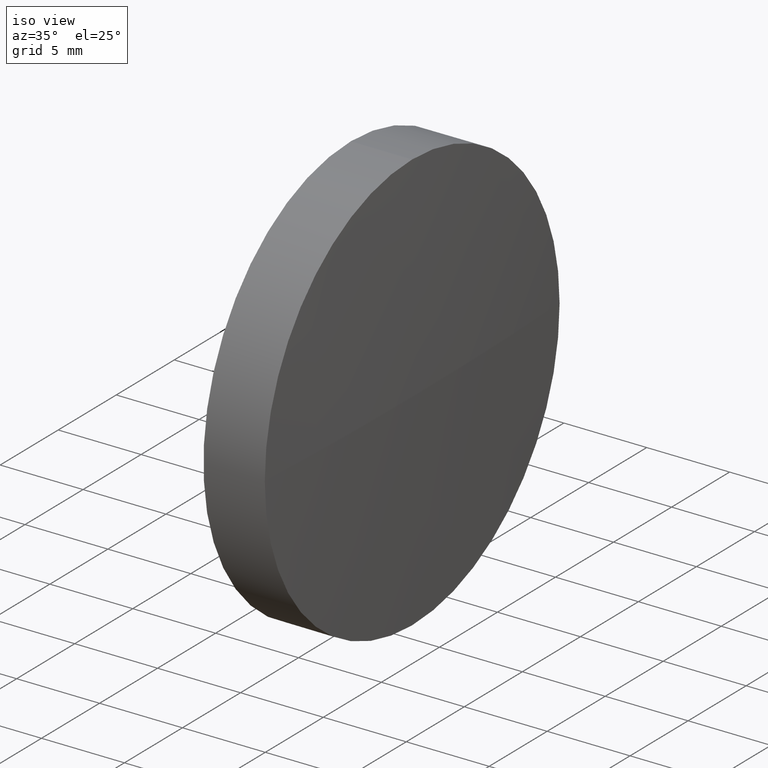
[diagram: clean part render]
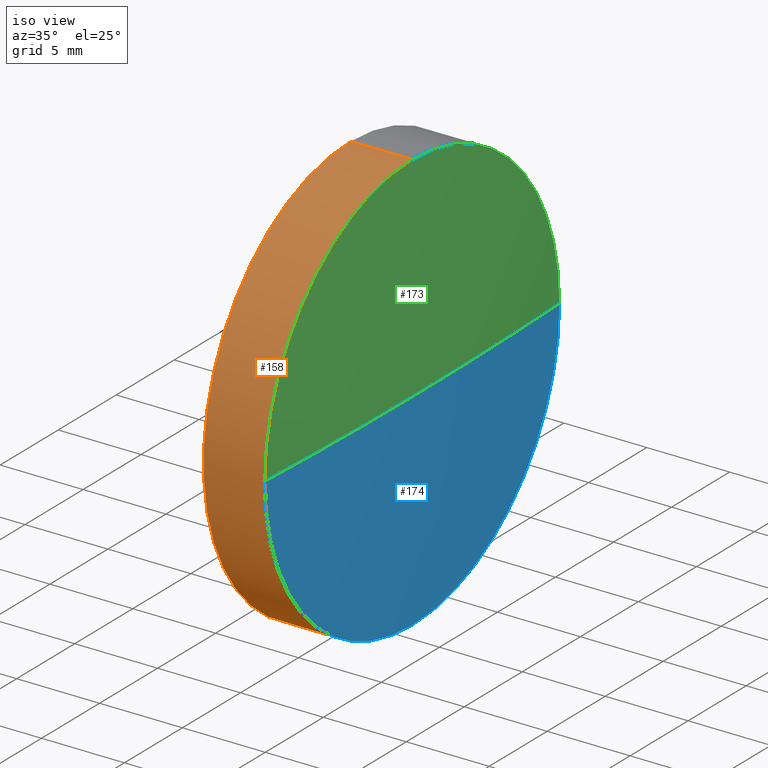
[diagram: same view with three faces highlighted in distinct colors, each labeled with its STEP entity id]
A machine part, iso view with three faces highlighted in distinct colors.
Their STEP definitions:

[orange] entity #158 — the highlighted cylindrical surface (partial cylindrical patch) has radius 12.7 mm, axis along (-1, -0, -0).
#1 = DIRECTION ( 'NONE',  ( 0.0000000000000000000, 0.0000000000000000000, 1.000000000000000000 ) ) ;
#3 = CARTESIAN_POINT ( 'NONE',  ( 548.0956546235013300, 475.3741786464798900, 12.70000000000004500 ) ) ;
#7 = EDGE_CURVE ( 'NONE', #149, #169, #146, .T. ) ;
#8 = CARTESIAN_POINT ( 'NONE',  ( 548.0956546235013300, 475.3741786464798900, 0.0000000000000000000 ) ) ;
#12 = DIRECTION ( 'NONE',  ( 0.0000000000000000000, 0.0000000000000000000, 1.000000000000000000 ) ) ;
#16 = CARTESIAN_POINT ( 'NONE',  ( 548.0956546235013300, 475.3741786464798900, 0.0000000000000000000 ) ) ;
#17 = FACE_OUTER_BOUND ( 'NONE', #114, .T. ) ;
#18 = VERTEX_POINT ( 'NONE', #49 ) ;
#20 = DIRECTION ( 'NONE',  ( 0.0000000000000000000, 0.0000000000000000000, 1.000000000000000000 ) ) ;
#29 = ORIENTED_EDGE ( 'NONE', *, *, #35, .F. ) ;
#32 = CARTESIAN_POINT ( 'NONE',  ( 544.3956546235012900, 475.3741786464798900, 0.0000000000000000000 ) ) ;
#33 = CIRCLE ( 'NONE', #43, 12.70000000000004500 ) ;
#34 = VERTEX_POINT ( 'NONE', #3 ) ;
#35 = EDGE_CURVE ( 'NONE', #18, #115, #33, .T. ) ;
#40 = CARTESIAN_POINT ( 'NONE',  ( 538.7657585723441100, 475.3741786464798900, 12.70000000000004500 ) ) ;
#43 = AXIS2_PLACEMENT_3D ( 'NONE', #32, #128, #157 ) ;
#49 = CARTESIAN_POINT ( 'NONE',  ( 544.3956546235012900, 475.3741786464798900, -12.70000000000004500 ) ) ;
#52 = ORIENTED_EDGE ( 'NONE', *, *, #171, .T. ) ;
#56 = CARTESIAN_POINT ( 'NONE',  ( 548.0956546235013300, 462.6741786464803000, -1.555301434917094700E-015 ) ) ;
#64 = AXIS2_PLACEMENT_3D ( 'NONE', #16, #170, #1 ) ;
#68 = CARTESIAN_POINT ( 'NONE',  ( 538.7657585723441100, 475.3741786464798900, 0.0000000000000000000 ) ) ;
#69 = ORIENTED_EDGE ( 'NONE', *, *, #120, .T. ) ;
#77 = ORIENTED_EDGE ( 'NONE', *, *, #180, .F. ) ;
#82 = ORIENTED_EDGE ( 'NONE', *, *, #7, .T. ) ;
#88 = VECTOR ( 'NONE', #136, 1000.000000000000000 ) ;
#93 = DIRECTION ( 'NONE',  ( -1.000000000000000000, -0.0000000000000000000, -0.0000000000000000000 ) ) ;
#95 = DIRECTION ( 'NONE',  ( -1.000000000000000000, -0.0000000000000000000, -0.0000000000000000000 ) ) ;
#111 = CARTESIAN_POINT ( 'NONE',  ( 538.7657585723441100, 475.3741786464798900, -12.70000000000004500 ) ) ;
#114 = EDGE_LOOP ( 'NONE', ( #77, #82, #69, #52, #29 ) ) ;
#115 = VERTEX_POINT ( 'NONE', #138 ) ;
#117 = AXIS2_PLACEMENT_3D ( 'NONE', #68, #95, #20 ) ;
#120 = EDGE_CURVE ( 'NONE', #169, #34, #134, .T. ) ;
#125 = CARTESIAN_POINT ( 'NONE',  ( 548.0956546235013300, 475.3741786464798900, -12.70000000000004500 ) ) ;
#127 = CYLINDRICAL_SURFACE ( 'NONE', #117, 12.70000000000004500 ) ;
#128 = DIRECTION ( 'NONE',  ( -1.000000000000000000, -0.0000000000000000000, -0.0000000000000000000 ) ) ;
#134 = CIRCLE ( 'NONE', #154, 12.70000000000004500 ) ;
#136 = DIRECTION ( 'NONE',  ( -1.000000000000000000, -0.0000000000000000000, -0.0000000000000000000 ) ) ;
#138 = CARTESIAN_POINT ( 'NONE',  ( 544.3956546235012900, 475.3741786464798900, 12.70000000000004500 ) ) ;
#140 = VECTOR ( 'NONE', #184, 1000.000000000000000 ) ;
#146 = CIRCLE ( 'NONE', #64, 12.70000000000004500 ) ;
#149 = VERTEX_POINT ( 'NONE', #125 ) ;
#151 = LINE ( 'NONE', #111, #140 ) ;
#154 = AXIS2_PLACEMENT_3D ( 'NONE', #8, #93, #12 ) ;
#157 = DIRECTION ( 'NONE',  ( 0.0000000000000000000, 0.0000000000000000000, 1.000000000000000000 ) ) ;
#158 = ADVANCED_FACE ( 'NONE', ( #17 ), #127, .T. ) ;
#169 = VERTEX_POINT ( 'NONE', #56 ) ;
#170 = DIRECTION ( 'NONE',  ( -1.000000000000000000, -0.0000000000000000000, -0.0000000000000000000 ) ) ;
#171 = EDGE_CURVE ( 'NONE', #34, #115, #175, .T. ) ;
#175 = LINE ( 'NONE', #40, #88 ) ;
#180 = EDGE_CURVE ( 'NONE', #149, #18, #151, .T. ) ;
#184 = DIRECTION ( 'NONE',  ( -1.000000000000000000, -0.0000000000000000000, -0.0000000000000000000 ) ) ;

[blue] entity #174 — the highlighted spherical surface has radius 268.967 mm.
#1 = DIRECTION ( 'NONE',  ( 0.0000000000000000000, 0.0000000000000000000, 1.000000000000000000 ) ) ;
#7 = EDGE_CURVE ( 'NONE', #149, #169, #146, .T. ) ;
#14 = ORIENTED_EDGE ( 'NONE', *, *, #90, .F. ) ;
#16 = CARTESIAN_POINT ( 'NONE',  ( 548.0956546235013300, 475.3741786464798900, 0.0000000000000000000 ) ) ;
#28 = EDGE_CURVE ( 'NONE', #45, #149, #103, .T. ) ;
#38 = CARTESIAN_POINT ( 'NONE',  ( 279.4289879568316900, 475.3741786464798900, 0.0000000000000000000 ) ) ;
#42 = ORIENTED_EDGE ( 'NONE', *, *, #7, .F. ) ;
#45 = VERTEX_POINT ( 'NONE', #76 ) ;
#54 = DIRECTION ( 'NONE',  ( -0.0000000000000000000, 0.0000000000000000000, 1.000000000000000000 ) ) ;
#55 = CARTESIAN_POINT ( 'NONE',  ( 548.3956546235012900, 475.3741786464798900, 0.0000000000000000000 ) ) ;
#56 = CARTESIAN_POINT ( 'NONE',  ( 548.0956546235013300, 462.6741786464803000, -1.555301434917094700E-015 ) ) ;
#60 = FACE_OUTER_BOUND ( 'NONE', #89, .T. ) ;
#64 = AXIS2_PLACEMENT_3D ( 'NONE', #16, #170, #1 ) ;
#70 = DIRECTION ( 'NONE',  ( 1.000000000000000000, 0.0000000000000000000, 0.0000000000000000000 ) ) ;
#71 = AXIS2_PLACEMENT_3D ( 'NONE', #38, #54, #70 ) ;
#75 = DIRECTION ( 'NONE',  ( -1.000000000000000000, -0.0000000000000000000, -0.0000000000000000000 ) ) ;
#76 = CARTESIAN_POINT ( 'NONE',  ( 548.0956546235013300, 488.0741786464794800, 0.0000000000000000000 ) ) ;
#83 = DIRECTION ( 'NONE',  ( 0.0000000000000000000, 1.000000000000000000, 1.224646799147353200E-016 ) ) ;
#84 = DIRECTION ( 'NONE',  ( -0.0000000000000000000, 0.0000000000000000000, -1.000000000000000000 ) ) ;
#85 = EDGE_CURVE ( 'NONE', #167, #169, #104, .T. ) ;
#89 = EDGE_LOOP ( 'NONE', ( #14, #156, #42, #142 ) ) ;
#90 = EDGE_CURVE ( 'NONE', #167, #45, #147, .T. ) ;
#103 = CIRCLE ( 'NONE', #144, 12.70000000000004500 ) ;
#104 = CIRCLE ( 'NONE', #129, 268.9666666666696000 ) ;
#109 = DIRECTION ( 'NONE',  ( 0.0000000000000000000, 1.224646799147353200E-016, -1.000000000000000000 ) ) ;
#116 = CARTESIAN_POINT ( 'NONE',  ( 548.0956546235013300, 475.3741786464798900, 0.0000000000000000000 ) ) ;
#125 = CARTESIAN_POINT ( 'NONE',  ( 548.0956546235013300, 475.3741786464798900, -12.70000000000004500 ) ) ;
#129 = AXIS2_PLACEMENT_3D ( 'NONE', #177, #109, #83 ) ;
#130 = SPHERICAL_SURFACE ( 'NONE', #160, 268.9666666666696000 ) ;
#142 = ORIENTED_EDGE ( 'NONE', *, *, #28, .F. ) ;
#144 = AXIS2_PLACEMENT_3D ( 'NONE', #116, #75, #168 ) ;
#146 = CIRCLE ( 'NONE', #64, 12.70000000000004500 ) ;
#147 = CIRCLE ( 'NONE', #71, 268.9666666666696000 ) ;
#149 = VERTEX_POINT ( 'NONE', #125 ) ;
#152 = CARTESIAN_POINT ( 'NONE',  ( 279.4289879568316900, 475.3741786464798900, 0.0000000000000000000 ) ) ;
#156 = ORIENTED_EDGE ( 'NONE', *, *, #85, .T. ) ;
#160 = AXIS2_PLACEMENT_3D ( 'NONE', #152, #84, #181 ) ;
#167 = VERTEX_POINT ( 'NONE', #55 ) ;
#168 = DIRECTION ( 'NONE',  ( 0.0000000000000000000, 0.0000000000000000000, 1.000000000000000000 ) ) ;
#169 = VERTEX_POINT ( 'NONE', #56 ) ;
#170 = DIRECTION ( 'NONE',  ( -1.000000000000000000, -0.0000000000000000000, -0.0000000000000000000 ) ) ;
#174 = ADVANCED_FACE ( 'NONE', ( #60 ), #130, .T. ) ;
#177 = CARTESIAN_POINT ( 'NONE',  ( 279.4289879568316900, 475.3741786464798900, 0.0000000000000000000 ) ) ;
#181 = DIRECTION ( 'NONE',  ( 0.0000000000000000000, 1.000000000000000000, 0.0000000000000000000 ) ) ;

[green] entity #173 — the highlighted spherical surface has radius 268.967 mm.
#3 = CARTESIAN_POINT ( 'NONE',  ( 548.0956546235013300, 475.3741786464798900, 12.70000000000004500 ) ) ;
#8 = CARTESIAN_POINT ( 'NONE',  ( 548.0956546235013300, 475.3741786464798900, 0.0000000000000000000 ) ) ;
#10 = CARTESIAN_POINT ( 'NONE',  ( 548.0956546235013300, 475.3741786464798900, 0.0000000000000000000 ) ) ;
#12 = DIRECTION ( 'NONE',  ( 0.0000000000000000000, 0.0000000000000000000, 1.000000000000000000 ) ) ;
#22 = DIRECTION ( 'NONE',  ( 0.0000000000000000000, 1.000000000000000000, 0.0000000000000000000 ) ) ;
#34 = VERTEX_POINT ( 'NONE', #3 ) ;
#36 = ORIENTED_EDGE ( 'NONE', *, *, #85, .F. ) ;
#38 = CARTESIAN_POINT ( 'NONE',  ( 279.4289879568316900, 475.3741786464798900, 0.0000000000000000000 ) ) ;
#41 = DIRECTION ( 'NONE',  ( -1.000000000000000000, -0.0000000000000000000, -0.0000000000000000000 ) ) ;
#45 = VERTEX_POINT ( 'NONE', #76 ) ;
#50 = EDGE_CURVE ( 'NONE', #34, #45, #172, .T. ) ;
#51 = SPHERICAL_SURFACE ( 'NONE', #81, 268.9666666666696000 ) ;
#54 = DIRECTION ( 'NONE',  ( -0.0000000000000000000, 0.0000000000000000000, 1.000000000000000000 ) ) ;
#55 = CARTESIAN_POINT ( 'NONE',  ( 548.3956546235012900, 475.3741786464798900, 0.0000000000000000000 ) ) ;
#56 = CARTESIAN_POINT ( 'NONE',  ( 548.0956546235013300, 462.6741786464803000, -1.555301434917094700E-015 ) ) ;
#58 = AXIS2_PLACEMENT_3D ( 'NONE', #10, #41, #123 ) ;
#70 = DIRECTION ( 'NONE',  ( 1.000000000000000000, 0.0000000000000000000, 0.0000000000000000000 ) ) ;
#71 = AXIS2_PLACEMENT_3D ( 'NONE', #38, #54, #70 ) ;
#73 = EDGE_LOOP ( 'NONE', ( #36, #124, #182, #159 ) ) ;
#76 = CARTESIAN_POINT ( 'NONE',  ( 548.0956546235013300, 488.0741786464794800, 0.0000000000000000000 ) ) ;
#81 = AXIS2_PLACEMENT_3D ( 'NONE', #163, #110, #22 ) ;
#83 = DIRECTION ( 'NONE',  ( 0.0000000000000000000, 1.000000000000000000, 1.224646799147353200E-016 ) ) ;
#85 = EDGE_CURVE ( 'NONE', #167, #169, #104, .T. ) ;
#90 = EDGE_CURVE ( 'NONE', #167, #45, #147, .T. ) ;
#93 = DIRECTION ( 'NONE',  ( -1.000000000000000000, -0.0000000000000000000, -0.0000000000000000000 ) ) ;
#104 = CIRCLE ( 'NONE', #129, 268.9666666666696000 ) ;
#109 = DIRECTION ( 'NONE',  ( 0.0000000000000000000, 1.224646799147353200E-016, -1.000000000000000000 ) ) ;
#110 = DIRECTION ( 'NONE',  ( -0.0000000000000000000, 0.0000000000000000000, -1.000000000000000000 ) ) ;
#118 = FACE_OUTER_BOUND ( 'NONE', #73, .T. ) ;
#120 = EDGE_CURVE ( 'NONE', #169, #34, #134, .T. ) ;
#123 = DIRECTION ( 'NONE',  ( 0.0000000000000000000, 0.0000000000000000000, 1.000000000000000000 ) ) ;
#124 = ORIENTED_EDGE ( 'NONE', *, *, #90, .T. ) ;
#129 = AXIS2_PLACEMENT_3D ( 'NONE', #177, #109, #83 ) ;
#134 = CIRCLE ( 'NONE', #154, 12.70000000000004500 ) ;
#147 = CIRCLE ( 'NONE', #71, 268.9666666666696000 ) ;
#154 = AXIS2_PLACEMENT_3D ( 'NONE', #8, #93, #12 ) ;
#159 = ORIENTED_EDGE ( 'NONE', *, *, #120, .F. ) ;
#163 = CARTESIAN_POINT ( 'NONE',  ( 279.4289879568316900, 475.3741786464798900, 0.0000000000000000000 ) ) ;
#167 = VERTEX_POINT ( 'NONE', #55 ) ;
#169 = VERTEX_POINT ( 'NONE', #56 ) ;
#172 = CIRCLE ( 'NONE', #58, 12.70000000000004500 ) ;
#173 = ADVANCED_FACE ( 'NONE', ( #118 ), #51, .T. ) ;
#177 = CARTESIAN_POINT ( 'NONE',  ( 279.4289879568316900, 475.3741786464798900, 0.0000000000000000000 ) ) ;
#182 = ORIENTED_EDGE ( 'NONE', *, *, #50, .F. ) ;